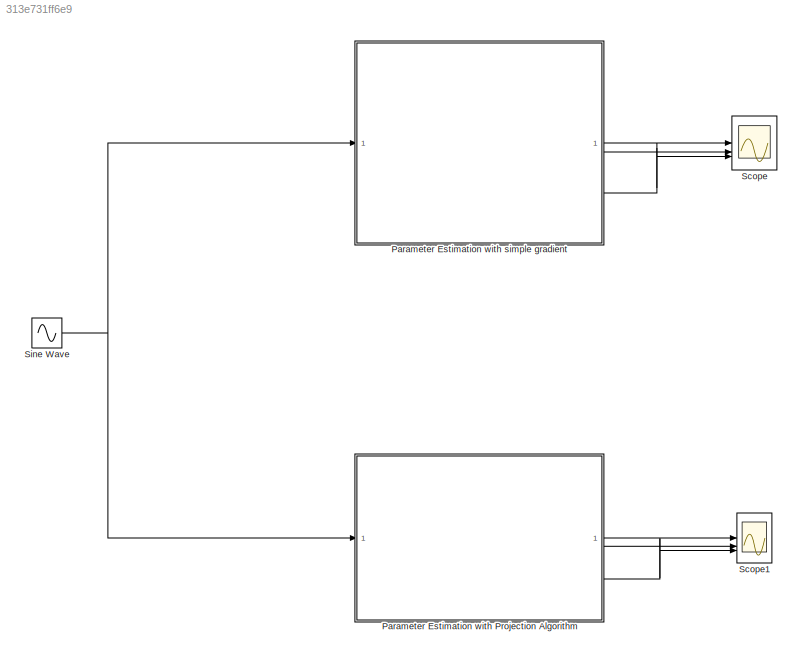
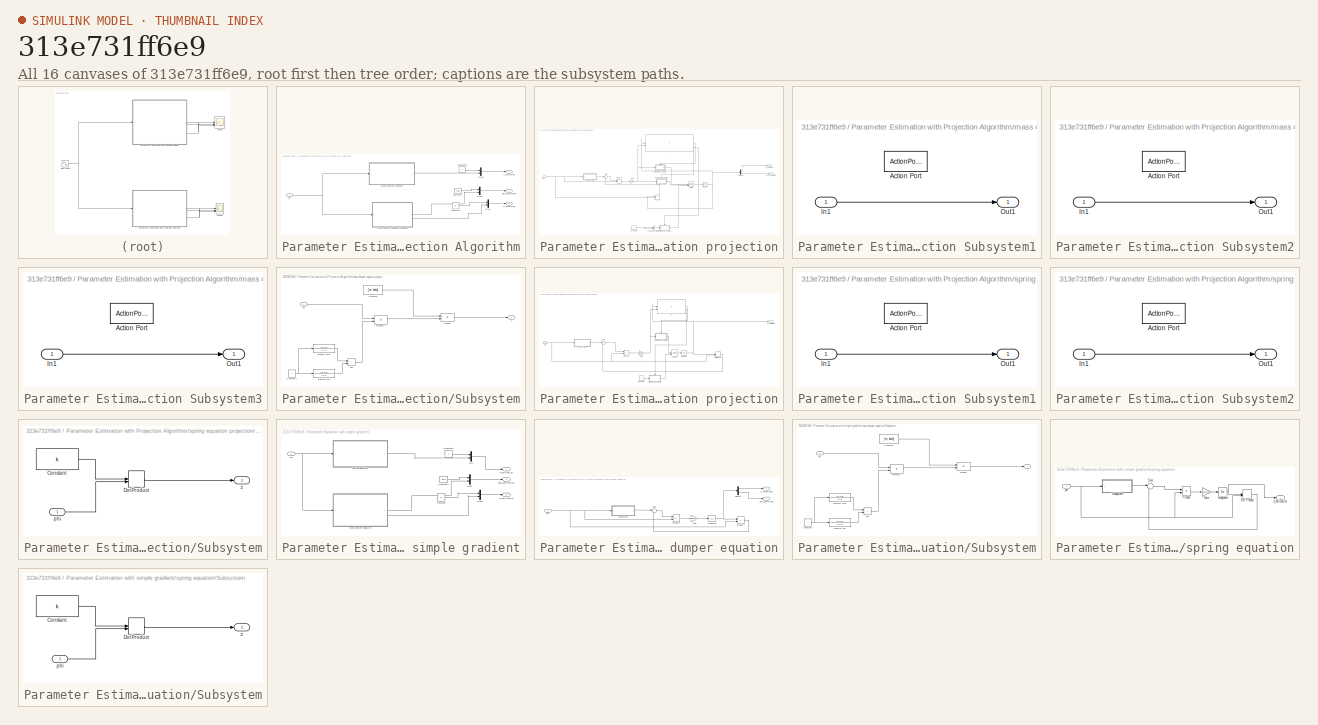
[diagram: thumbnail index - all 16 canvases of the model, root first then tree order]
MODEL slx_313e731ff6e9
KIND model
CONFIG AbsTol = auto
CONFIG EnableMultiTasking = off
CONFIG FixedStep = auto
CONFIG MaxStep = auto
CONFIG MinStep = auto
CONFIG PreLoadFcn = k = 2;\ngamma1 = 0.5;
CONFIG RelTol = 1e-3
CONFIG SampleTimeConstraint = Unconstrained
CONFIG SolverName = VariableStepAuto
CONFIG StartTime = 0.0
CONFIG StopTime = 20.0
WORKSPACE source: mxarray member
WORKSPACE s: Simulink.Parameter (value not decoded)
BLOCK [SubSystem] Parameter Estimation with Projection Algorithm
BLOCK [Constant] Parameter Estimation with Projection Algorithm/Constant3
  Value = m
BLOCK [Constant] Parameter Estimation with Projection Algorithm/Constant4
  Value = beta
BLOCK [Constant] Parameter Estimation with Projection Algorithm/Constant5
  Value = k
BLOCK [Mux] Parameter Estimation with Projection Algorithm/Mux3
  DisplayOption = bar
  Inputs = 2
BLOCK [Mux] Parameter Estimation with Projection Algorithm/Mux4
  DisplayOption = bar
  Inputs = 2
BLOCK [Mux] Parameter Estimation with Projection Algorithm/Mux5
  DisplayOption = bar
  Inputs = 2
BLOCK [Outport] Parameter Estimation with Projection Algorithm/beta_estimated
  Port = 2
BLOCK [Outport] Parameter Estimation with Projection Algorithm/k_estimated
BLOCK [Outport] Parameter Estimation with Projection Algorithm/m_estimated
  Port = 3
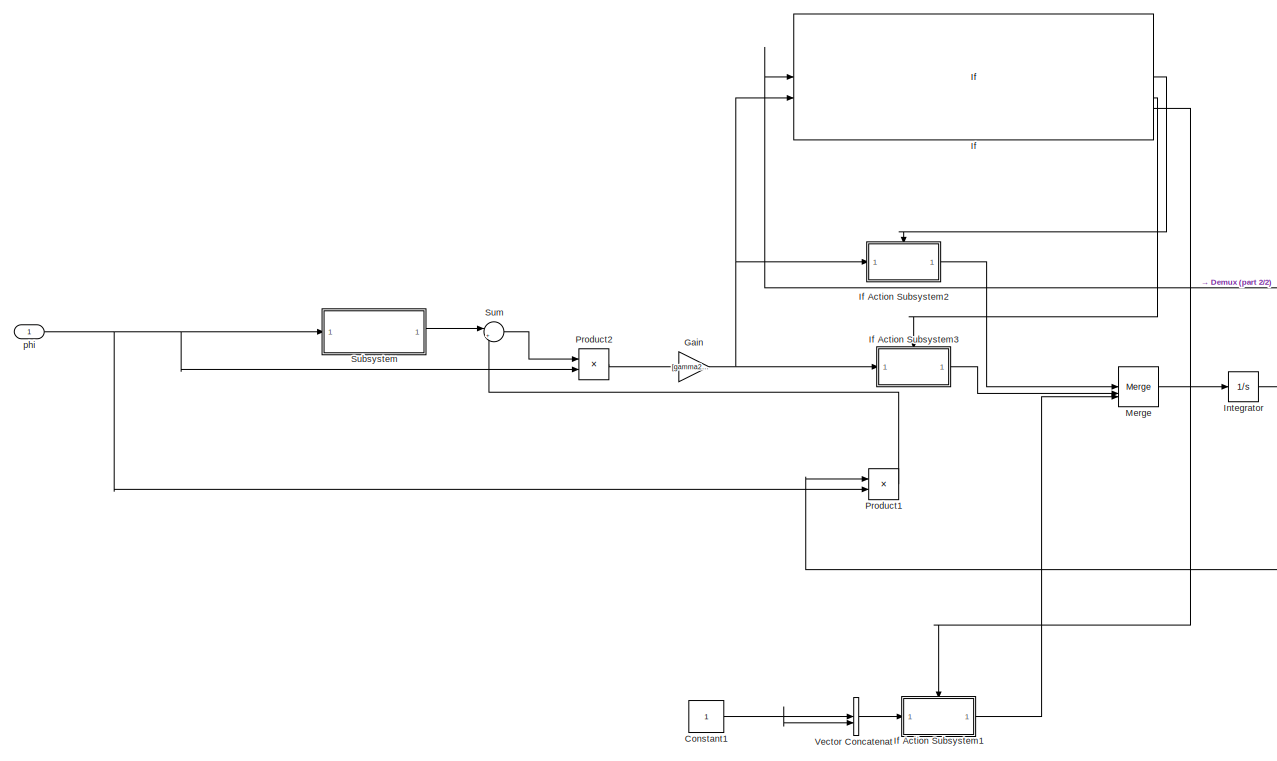
[diagram: Parameter Estimation with Projection Algorithm/mass dumper equation projection - part 1/2, center side, full height]
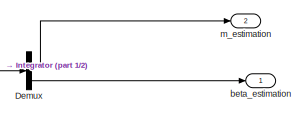
[diagram: Parameter Estimation with Projection Algorithm/mass dumper equation projection - part 2/2, middle right region]
BLOCK [SubSystem] Parameter Estimation with Projection Algorithm/mass dumper equation projection
BLOCK [Constant] Parameter Estimation with Projection Algorithm/mass dumper equation projection/Constant1
BLOCK [Demux] Parameter Estimation with Projection Algorithm/mass dumper equation projection/Demux
  Outputs = 2
BLOCK [Gain] Parameter Estimation with Projection Algorithm/mass dumper equation projection/Gain
  Gain = [gamma2 0; 0 gamma3]
  Multiplication = Matrix(K*u)
BLOCK [If] Parameter Estimation with Projection Algorithm/mass dumper equation projection/If
  ElseIfExpressions = (u1(2) > 0 & u1(2) < 1 ) | (u1(2) == 0. & u2(2) >= 0) | (u1(2) == 1 & u2(2) <= 0)
  IfExpression = (u1(1) > 10) | (u1(1) == 10 & u2(1) >= 0)
  NumInputs = 2
BLOCK [SubSystem] Parameter Estimation with Projection Algorithm/mass dumper equation projection/If Action Subsystem1
  TreatAsAtomicUnit = on
BLOCK [ActionPort] Parameter Estimation with Projection Algorithm/mass dumper equation projection/If Action Subsystem1/Action Port
  ActionPortLabel = else
BLOCK [Inport] Parameter Estimation with Projection Algorithm/mass dumper equation projection/If Action Subsystem1/In1
BLOCK [Outport] Parameter Estimation with Projection Algorithm/mass dumper equation projection/If Action Subsystem1/Out1
BLOCK [SubSystem] Parameter Estimation with Projection Algorithm/mass dumper equation projection/If Action Subsystem2
  TreatAsAtomicUnit = on
BLOCK [ActionPort] Parameter Estimation with Projection Algorithm/mass dumper equation projection/If Action Subsystem2/Action Port
  ActionPortLabel = if((u1(1) > 10) | (u1(1) == 10 & u2(1) >= 0))
BLOCK [Inport] Parameter Estimation with Projection Algorithm/mass dumper equation projection/If Action Subsystem2/In1
BLOCK [Outport] Parameter Estimation with Projection Algorithm/mass dumper equation projection/If Action Subsystem2/Out1
BLOCK [SubSystem] Parameter Estimation with Projection Algorithm/mass dumper equation projection/If Action Subsystem3
  TreatAsAtomicUnit = on
BLOCK [ActionPort] Parameter Estimation with Projection Algorithm/mass dumper equation projection/If Action Subsystem3/Action Port
  ActionPortLabel = elseif((u1(2) > 0 & u1(2) < 1 ) | (u1(2) == 0. & u2(2) >= 0) | (u1(2) == 1 & u2(2) <= 0))
BLOCK [Inport] Parameter Estimation with Projection Algorithm/mass dumper equation projection/If Action Subsystem3/In1
BLOCK [Outport] Parameter Estimation with Projection Algorithm/mass dumper equation projection/If Action Subsystem3/Out1
BLOCK [Integrator] Parameter Estimation with Projection Algorithm/mass dumper equation projection/Integrator
BLOCK [Merge] Parameter Estimation with Projection Algorithm/mass dumper equation projection/Merge
  InitialOutput = 1
  Inputs = 3
BLOCK [Product] Parameter Estimation with Projection Algorithm/mass dumper equation projection/Product1
  Multiplication = Matrix(*)
BLOCK [Product] Parameter Estimation with Projection Algorithm/mass dumper equation projection/Product2
BLOCK [SubSystem] Parameter Estimation with Projection Algorithm/mass dumper equation projection/Subsystem
BLOCK [Sum] Parameter Estimation with Projection Algorithm/mass dumper equation projection/Subsystem/Add
  IconShape = rectangular
BLOCK [Constant] Parameter Estimation with Projection Algorithm/mass dumper equation projection/Subsystem/Constant
  Value = [m; beta]
  VectorParams1D = off
BLOCK [Constant] Parameter Estimation with Projection Algorithm/mass dumper equation projection/Subsystem/Constant1
BLOCK [Product] Parameter Estimation with Projection Algorithm/mass dumper equation projection/Subsystem/Product
BLOCK [Product] Parameter Estimation with Projection Algorithm/mass dumper equation projection/Subsystem/Product1
BLOCK [TransferFcn] Parameter Estimation with Projection Algorithm/mass dumper equation projection/Subsystem/Transfer Fcn
  Numerator = [0 0 1]
BLOCK [TransferFcn] Parameter Estimation with Projection Algorithm/mass dumper equation projection/Subsystem/Transfer Fcn1
  Numerator = [0 1 0]
BLOCK [Inport] Parameter Estimation with Projection Algorithm/mass dumper equation projection/Subsystem/phi
BLOCK [Outport] Parameter Estimation with Projection Algorithm/mass dumper equation projection/Subsystem/z
BLOCK [Sum] Parameter Estimation with Projection Algorithm/mass dumper equation projection/Sum
  Inputs = |+-
BLOCK [Concatenate] Parameter Estimation with Projection Algorithm/mass dumper equation projection/Vector Concatenate
  Mode = Multidimensional array
BLOCK [Outport] Parameter Estimation with Projection Algorithm/mass dumper equation projection/beta_estimation
BLOCK [Outport] Parameter Estimation with Projection Algorithm/mass dumper equation projection/m_estimation
  Port = 2
BLOCK [Inport] Parameter Estimation with Projection Algorithm/mass dumper equation projection/phi
BLOCK [Inport] Parameter Estimation with Projection Algorithm/phi
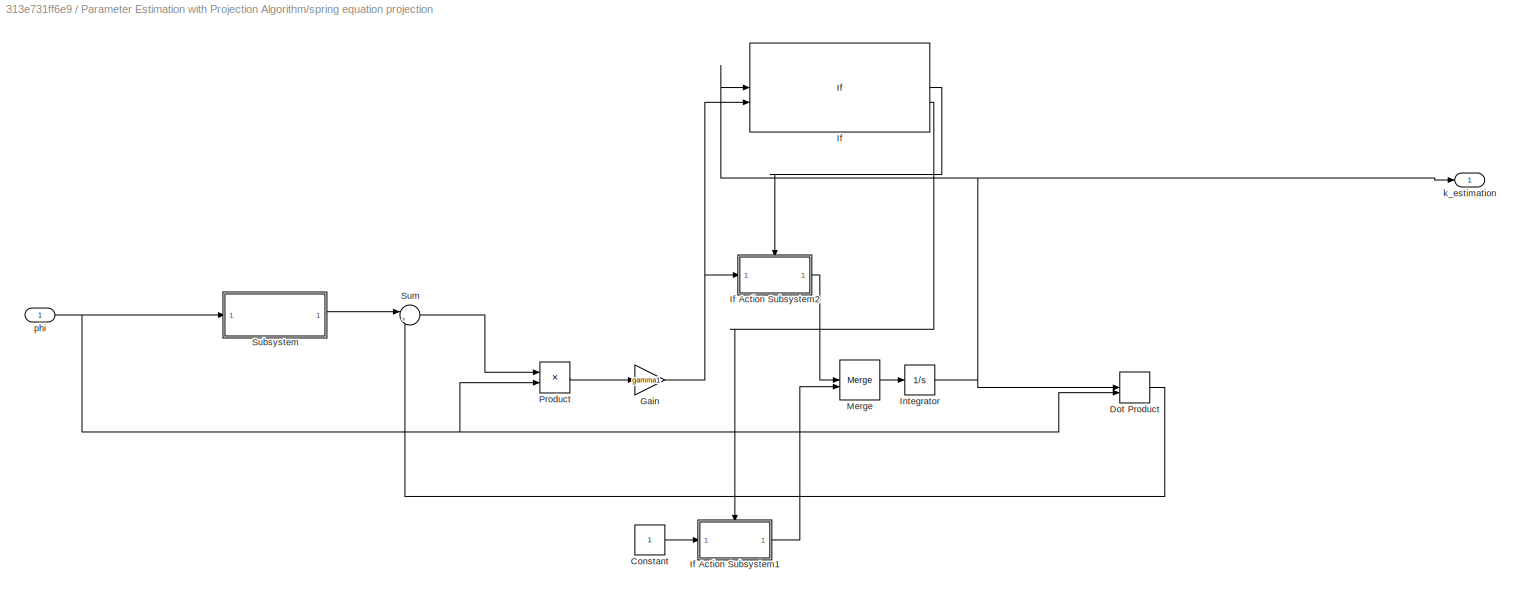
BLOCK [SubSystem] Parameter Estimation with Projection Algorithm/spring equation projection
BLOCK [Constant] Parameter Estimation with Projection Algorithm/spring equation projection/Constant
BLOCK [DotProduct] Parameter Estimation with Projection Algorithm/spring equation projection/Dot Product
  OutDataTypeStr = Inherit: Inherit via internal rule
BLOCK [Gain] Parameter Estimation with Projection Algorithm/spring equation projection/Gain
  Gain = gamma1
BLOCK [If] Parameter Estimation with Projection Algorithm/spring equation projection/If
  IfExpression = (u1 > 0.1) | (u1 == 0.1 & u2>= 0)
  NumInputs = 2
BLOCK [SubSystem] Parameter Estimation with Projection Algorithm/spring equation projection/If Action Subsystem1
  TreatAsAtomicUnit = on
BLOCK [ActionPort] Parameter Estimation with Projection Algorithm/spring equation projection/If Action Subsystem1/Action Port
  ActionPortLabel = else
BLOCK [Inport] Parameter Estimation with Projection Algorithm/spring equation projection/If Action Subsystem1/In1
BLOCK [Outport] Parameter Estimation with Projection Algorithm/spring equation projection/If Action Subsystem1/Out1
BLOCK [SubSystem] Parameter Estimation with Projection Algorithm/spring equation projection/If Action Subsystem2
  TreatAsAtomicUnit = on
BLOCK [ActionPort] Parameter Estimation with Projection Algorithm/spring equation projection/If Action Subsystem2/Action Port
  ActionPortLabel = if((u1 > 0.1) | (u1 == 0.1 & u2>= 0))
BLOCK [Inport] Parameter Estimation with Projection Algorithm/spring equation projection/If Action Subsystem2/In1
BLOCK [Outport] Parameter Estimation with Projection Algorithm/spring equation projection/If Action Subsystem2/Out1
BLOCK [Integrator] Parameter Estimation with Projection Algorithm/spring equation projection/Integrator
BLOCK [Merge] Parameter Estimation with Projection Algorithm/spring equation projection/Merge
  InitialOutput = 1
BLOCK [Product] Parameter Estimation with Projection Algorithm/spring equation projection/Product
BLOCK [SubSystem] Parameter Estimation with Projection Algorithm/spring equation projection/Subsystem
BLOCK [Constant] Parameter Estimation with Projection Algorithm/spring equation projection/Subsystem/Constant
  Value = k
  VectorParams1D = off
BLOCK [DotProduct] Parameter Estimation with Projection Algorithm/spring equation projection/Subsystem/Dot Product
  OutDataTypeStr = Inherit: Inherit via internal rule
BLOCK [Inport] Parameter Estimation with Projection Algorithm/spring equation projection/Subsystem/phi
BLOCK [Outport] Parameter Estimation with Projection Algorithm/spring equation projection/Subsystem/z
BLOCK [Sum] Parameter Estimation with Projection Algorithm/spring equation projection/Sum
  Inputs = |+-
BLOCK [Outport] Parameter Estimation with Projection Algorithm/spring equation projection/k_estimation
BLOCK [Inport] Parameter Estimation with Projection Algorithm/spring equation projection/phi
BLOCK [SubSystem] Parameter Estimation with simple gradient
BLOCK [Constant] Parameter Estimation with simple gradient/Constant
  Value = m
BLOCK [Constant] Parameter Estimation with simple gradient/Constant1
  Value = beta
BLOCK [Constant] Parameter Estimation with simple gradient/Constant2
  Value = k
BLOCK [Mux] Parameter Estimation with simple gradient/Mux
  DisplayOption = bar
  Inputs = 2
BLOCK [Mux] Parameter Estimation with simple gradient/Mux1
  DisplayOption = bar
  Inputs = 2
BLOCK [Mux] Parameter Estimation with simple gradient/Mux2
  DisplayOption = bar
  Inputs = 2
BLOCK [Outport] Parameter Estimation with simple gradient/beta_estimation
  Port = 2
BLOCK [Outport] Parameter Estimation with simple gradient/k_estimation
BLOCK [Outport] Parameter Estimation with simple gradient/m_estimation
  Port = 3
BLOCK [SubSystem] Parameter Estimation with simple gradient/mass dumper equation
BLOCK [Demux] Parameter Estimation with simple gradient/mass dumper equation/Demux
  Outputs = 2
BLOCK [Gain] Parameter Estimation with simple gradient/mass dumper equation/Gain
  Gain = [gamma2 0; 0 gamma3]
  Multiplication = Matrix(K*u)
BLOCK [Integrator] Parameter Estimation with simple gradient/mass dumper equation/Integrator
BLOCK [Product] Parameter Estimation with simple gradient/mass dumper equation/Product1
  Multiplication = Matrix(*)
BLOCK [Product] Parameter Estimation with simple gradient/mass dumper equation/Product2
BLOCK [SubSystem] Parameter Estimation with simple gradient/mass dumper equation/Subsystem
BLOCK [Sum] Parameter Estimation with simple gradient/mass dumper equation/Subsystem/Add
  IconShape = rectangular
BLOCK [Constant] Parameter Estimation with simple gradient/mass dumper equation/Subsystem/Constant
  Value = [m; beta]
  VectorParams1D = off
BLOCK [Constant] Parameter Estimation with simple gradient/mass dumper equation/Subsystem/Constant1
BLOCK [Product] Parameter Estimation with simple gradient/mass dumper equation/Subsystem/Product
BLOCK [Product] Parameter Estimation with simple gradient/mass dumper equation/Subsystem/Product1
BLOCK [TransferFcn] Parameter Estimation with simple gradient/mass dumper equation/Subsystem/Transfer Fcn
  Numerator = [0 0 1]
BLOCK [TransferFcn] Parameter Estimation with simple gradient/mass dumper equation/Subsystem/Transfer Fcn1
  Numerator = [0 1 0]
BLOCK [Inport] Parameter Estimation with simple gradient/mass dumper equation/Subsystem/phi
BLOCK [Outport] Parameter Estimation with simple gradient/mass dumper equation/Subsystem/z
BLOCK [Sum] Parameter Estimation with simple gradient/mass dumper equation/Sum
  Inputs = |+-
BLOCK [Outport] Parameter Estimation with simple gradient/mass dumper equation/beta_estimation
BLOCK [Outport] Parameter Estimation with simple gradient/mass dumper equation/m_estimation
  Port = 2
BLOCK [Inport] Parameter Estimation with simple gradient/mass dumper equation/phi
BLOCK [Inport] Parameter Estimation with simple gradient/phi
BLOCK [SubSystem] Parameter Estimation with simple gradient/spring equation
BLOCK [DotProduct] Parameter Estimation with simple gradient/spring equation/Dot Product
  OutDataTypeStr = Inherit: Inherit via internal rule
BLOCK [Gain] Parameter Estimation with simple gradient/spring equation/Gain
  Gain = gamma1
BLOCK [Integrator] Parameter Estimation with simple gradient/spring equation/Integrator
BLOCK [Product] Parameter Estimation with simple gradient/spring equation/Product
BLOCK [SubSystem] Parameter Estimation with simple gradient/spring equation/Subsystem
BLOCK [Constant] Parameter Estimation with simple gradient/spring equation/Subsystem/Constant
  Value = k
  VectorParams1D = off
BLOCK [DotProduct] Parameter Estimation with simple gradient/spring equation/Subsystem/Dot Product
  OutDataTypeStr = Inherit: Inherit via internal rule
BLOCK [Inport] Parameter Estimation with simple gradient/spring equation/Subsystem/phi
BLOCK [Outport] Parameter Estimation with simple gradient/spring equation/Subsystem/z
BLOCK [Sum] Parameter Estimation with simple gradient/spring equation/Sum
  Inputs = |+-
BLOCK [Outport] Parameter Estimation with simple gradient/spring equation/k_estimation
BLOCK [Inport] Parameter Estimation with simple gradient/spring equation/phi
BLOCK [Scope] Scope
  Floating = off
  NumInputPorts = 3
  ScopeSpecificationString = Simulink.scopes.TimeScopeBlockCfg('CurrentConfiguration', extmgr.ConfigurationSet(extmgr.Configuration('Core','General UI',true),extmgr.Configuration('Core','Source UI',true),extmgr.Configuration('Sources','WiredSimulink',true),extmgr.Configuration('Visuals','Time Domain',true,'SerializedDisplays',{struct('MinYLimReal','-0.25','MaxYLimReal','2.25','YLabelReal','','MinYLimMag','0.00000','MaxYLimMag...<+3364ch>
BLOCK [Scope] Scope1
  Floating = off
  NumInputPorts = 3
  ScopeSpecificationString = Simulink.scopes.TimeScopeBlockCfg('CurrentConfiguration', extmgr.ConfigurationSet(extmgr.Configuration('Core','General UI',true),extmgr.Configuration('Core','Source UI',true),extmgr.Configuration('Sources','WiredSimulink',true,'DataLoggingVariableName','ScopeData1'),extmgr.Configuration('Visuals','Time Domain',true,'SerializedDisplays',{struct('MinYLimReal','-0.25','MaxYLimReal','2.25','YLabelReal...<+3374ch>
BLOCK [Sin] Sine Wave
  Amplitude = 5
  Bias = 10.5
  Frequency = 2
  SampleTime = 0
LINE Parameter Estimation with Projection Algorithm/Constant3:1 -> Parameter Estimation with Projection Algorithm/Mux4:1
LINE Parameter Estimation with Projection Algorithm/Constant4:1 -> Parameter Estimation with Projection Algorithm/Mux5:1
LINE Parameter Estimation with Projection Algorithm/Constant5:1 -> Parameter Estimation with Projection Algorithm/Mux3:1
LINE Parameter Estimation with Projection Algorithm/Mux3:1 -> Parameter Estimation with Projection Algorithm/k_estimated:1
LINE Parameter Estimation with Projection Algorithm/Mux4:1 -> Parameter Estimation with Projection Algorithm/m_estimated:1
LINE Parameter Estimation with Projection Algorithm/Mux5:1 -> Parameter Estimation with Projection Algorithm/beta_estimated:1
NET Parameter Estimation with Projection Algorithm/mass dumper equation projection/Constant1:1 -> Parameter Estimation with Projection Algorithm/mass dumper equation projection/Vector Concatenate:1, Parameter Estimation with Projection Algorithm/mass dumper equation projection/Vector Concatenate:2
LINE Parameter Estimation with Projection Algorithm/mass dumper equation projection/Demux:1 -> Parameter Estimation with Projection Algorithm/mass dumper equation projection/m_estimation:1
LINE Parameter Estimation with Projection Algorithm/mass dumper equation projection/Demux:2 -> Parameter Estimation with Projection Algorithm/mass dumper equation projection/beta_estimation:1
NET Parameter Estimation with Projection Algorithm/mass dumper equation projection/Gain:1 -> Parameter Estimation with Projection Algorithm/mass dumper equation projection/If Action Subsystem2:1, Parameter Estimation with Projection Algorithm/mass dumper equation projection/If Action Subsystem3:1, Parameter Estimation with Projection Algorithm/mass dumper equation projection/If:2
LINE Parameter Estimation with Projection Algorithm/mass dumper equation projection/If Action Subsystem1/In1:1 -> Parameter Estimation with Projection Algorithm/mass dumper equation projection/If Action Subsystem1/Out1:1
LINE Parameter Estimation with Projection Algorithm/mass dumper equation projection/If Action Subsystem1:1 -> Parameter Estimation with Projection Algorithm/mass dumper equation projection/Merge:3
LINE Parameter Estimation with Projection Algorithm/mass dumper equation projection/If Action Subsystem2/In1:1 -> Parameter Estimation with Projection Algorithm/mass dumper equation projection/If Action Subsystem2/Out1:1
LINE Parameter Estimation with Projection Algorithm/mass dumper equation projection/If Action Subsystem2:1 -> Parameter Estimation with Projection Algorithm/mass dumper equation projection/Merge:1
LINE Parameter Estimation with Projection Algorithm/mass dumper equation projection/If Action Subsystem3/In1:1 -> Parameter Estimation with Projection Algorithm/mass dumper equation projection/If Action Subsystem3/Out1:1
LINE Parameter Estimation with Projection Algorithm/mass dumper equation projection/If Action Subsystem3:1 -> Parameter Estimation with Projection Algorithm/mass dumper equation projection/Merge:2
LINE Parameter Estimation with Projection Algorithm/mass dumper equation projection/If:1 -> Parameter Estimation with Projection Algorithm/mass dumper equation projection/If Action Subsystem2:ifaction
LINE Parameter Estimation with Projection Algorithm/mass dumper equation projection/If:2 -> Parameter Estimation with Projection Algorithm/mass dumper equation projection/If Action Subsystem3:ifaction
LINE Parameter Estimation with Projection Algorithm/mass dumper equation projection/If:3 -> Parameter Estimation with Projection Algorithm/mass dumper equation projection/If Action Subsystem1:ifaction
NET Parameter Estimation with Projection Algorithm/mass dumper equation projection/Integrator:1 -> Parameter Estimation with Projection Algorithm/mass dumper equation projection/Demux:1, Parameter Estimation with Projection Algorithm/mass dumper equation projection/If:1, Parameter Estimation with Projection Algorithm/mass dumper equation projection/Product1:1
LINE Parameter Estimation with Projection Algorithm/mass dumper equation projection/Merge:1 -> Parameter Estimation with Projection Algorithm/mass dumper equation projection/Integrator:1
LINE Parameter Estimation with Projection Algorithm/mass dumper equation projection/Product1:1 -> Parameter Estimation with Projection Algorithm/mass dumper equation projection/Sum:2
LINE Parameter Estimation with Projection Algorithm/mass dumper equation projection/Product2:1 -> Parameter Estimation with Projection Algorithm/mass dumper equation projection/Gain:1
LINE Parameter Estimation with Projection Algorithm/mass dumper equation projection/Subsystem/Add:1 -> Parameter Estimation with Projection Algorithm/mass dumper equation projection/Subsystem/Product1:2
NET Parameter Estimation with Projection Algorithm/mass dumper equation projection/Subsystem/Constant1:1 -> Parameter Estimation with Projection Algorithm/mass dumper equation projection/Subsystem/Transfer Fcn1:1, Parameter Estimation with Projection Algorithm/mass dumper equation projection/Subsystem/Transfer Fcn:1
LINE Parameter Estimation with Projection Algorithm/mass dumper equation projection/Subsystem/Constant:1 -> Parameter Estimation with Projection Algorithm/mass dumper equation projection/Subsystem/Product:1
LINE Parameter Estimation with Projection Algorithm/mass dumper equation projection/Subsystem/Product1:1 -> Parameter Estimation with Projection Algorithm/mass dumper equation projection/Subsystem/Product:2
LINE Parameter Estimation with Projection Algorithm/mass dumper equation projection/Subsystem/Product:1 -> Parameter Estimation with Projection Algorithm/mass dumper equation projection/Subsystem/z:1
LINE Parameter Estimation with Projection Algorithm/mass dumper equation projection/Subsystem/Transfer Fcn1:1 -> Parameter Estimation with Projection Algorithm/mass dumper equation projection/Subsystem/Add:1
LINE Parameter Estimation with Projection Algorithm/mass dumper equation projection/Subsystem/Transfer Fcn:1 -> Parameter Estimation with Projection Algorithm/mass dumper equation projection/Subsystem/Add:2
LINE Parameter Estimation with Projection Algorithm/mass dumper equation projection/Subsystem/phi:1 -> Parameter Estimation with Projection Algorithm/mass dumper equation projection/Subsystem/Product1:1
LINE Parameter Estimation with Projection Algorithm/mass dumper equation projection/Subsystem:1 -> Parameter Estimation with Projection Algorithm/mass dumper equation projection/Sum:1
LINE Parameter Estimation with Projection Algorithm/mass dumper equation projection/Sum:1 -> Parameter Estimation with Projection Algorithm/mass dumper equation projection/Product2:1
LINE Parameter Estimation with Projection Algorithm/mass dumper equation projection/Vector Concatenate:1 -> Parameter Estimation with Projection Algorithm/mass dumper equation projection/If Action Subsystem1:1
NET Parameter Estimation with Projection Algorithm/mass dumper equation projection/phi:1 -> Parameter Estimation with Projection Algorithm/mass dumper equation projection/Product1:2, Parameter Estimation with Projection Algorithm/mass dumper equation projection/Product2:2, Parameter Estimation with Projection Algorithm/mass dumper equation projection/Subsystem:1
LINE Parameter Estimation with Projection Algorithm/mass dumper equation projection:1 -> Parameter Estimation with Projection Algorithm/Mux5:2
LINE Parameter Estimation with Projection Algorithm/mass dumper equation projection:2 -> Parameter Estimation with Projection Algorithm/Mux4:2
NET Parameter Estimation with Projection Algorithm/phi:1 -> Parameter Estimation with Projection Algorithm/mass dumper equation projection:1, Parameter Estimation with Projection Algorithm/spring equation projection:1
LINE Parameter Estimation with Projection Algorithm/spring equation projection/Constant:1 -> Parameter Estimation with Projection Algorithm/spring equation projection/If Action Subsystem1:1
LINE Parameter Estimation with Projection Algorithm/spring equation projection/Dot Product:1 -> Parameter Estimation with Projection Algorithm/spring equation projection/Sum:2
NET Parameter Estimation with Projection Algorithm/spring equation projection/Gain:1 -> Parameter Estimation with Projection Algorithm/spring equation projection/If Action Subsystem2:1, Parameter Estimation with Projection Algorithm/spring equation projection/If:2
LINE Parameter Estimation with Projection Algorithm/spring equation projection/If Action Subsystem1/In1:1 -> Parameter Estimation with Projection Algorithm/spring equation projection/If Action Subsystem1/Out1:1
LINE Parameter Estimation with Projection Algorithm/spring equation projection/If Action Subsystem1:1 -> Parameter Estimation with Projection Algorithm/spring equation projection/Merge:2
LINE Parameter Estimation with Projection Algorithm/spring equation projection/If Action Subsystem2/In1:1 -> Parameter Estimation with Projection Algorithm/spring equation projection/If Action Subsystem2/Out1:1
LINE Parameter Estimation with Projection Algorithm/spring equation projection/If Action Subsystem2:1 -> Parameter Estimation with Projection Algorithm/spring equation projection/Merge:1
LINE Parameter Estimation with Projection Algorithm/spring equation projection/If:1 -> Parameter Estimation with Projection Algorithm/spring equation projection/If Action Subsystem2:ifaction
LINE Parameter Estimation with Projection Algorithm/spring equation projection/If:2 -> Parameter Estimation with Projection Algorithm/spring equation projection/If Action Subsystem1:ifaction
NET Parameter Estimation with Projection Algorithm/spring equation projection/Integrator:1 -> Parameter Estimation with Projection Algorithm/spring equation projection/Dot Product:1, Parameter Estimation with Projection Algorithm/spring equation projection/If:1, Parameter Estimation with Projection Algorithm/spring equation projection/k_estimation:1
LINE Parameter Estimation with Projection Algorithm/spring equation projection/Merge:1 -> Parameter Estimation with Projection Algorithm/spring equation projection/Integrator:1
LINE Parameter Estimation with Projection Algorithm/spring equation projection/Product:1 -> Parameter Estimation with Projection Algorithm/spring equation projection/Gain:1
LINE Parameter Estimation with Projection Algorithm/spring equation projection/Subsystem/Constant:1 -> Parameter Estimation with Projection Algorithm/spring equation projection/Subsystem/Dot Product:1
LINE Parameter Estimation with Projection Algorithm/spring equation projection/Subsystem/Dot Product:1 -> Parameter Estimation with Projection Algorithm/spring equation projection/Subsystem/z:1
LINE Parameter Estimation with Projection Algorithm/spring equation projection/Subsystem/phi:1 -> Parameter Estimation with Projection Algorithm/spring equation projection/Subsystem/Dot Product:2
LINE Parameter Estimation with Projection Algorithm/spring equation projection/Subsystem:1 -> Parameter Estimation with Projection Algorithm/spring equation projection/Sum:1
LINE Parameter Estimation with Projection Algorithm/spring equation projection/Sum:1 -> Parameter Estimation with Projection Algorithm/spring equation projection/Product:1
NET Parameter Estimation with Projection Algorithm/spring equation projection/phi:1 -> Parameter Estimation with Projection Algorithm/spring equation projection/Dot Product:2, Parameter Estimation with Projection Algorithm/spring equation projection/Product:2, Parameter Estimation with Projection Algorithm/spring equation projection/Subsystem:1
LINE Parameter Estimation with Projection Algorithm/spring equation projection:1 -> Parameter Estimation with Projection Algorithm/Mux3:2
LINE Parameter Estimation with Projection Algorithm:1 -> Scope1:1
LINE Parameter Estimation with Projection Algorithm:2 -> Scope1:2
LINE Parameter Estimation with Projection Algorithm:3 -> Scope1:3
LINE Parameter Estimation with simple gradient/Constant1:1 -> Parameter Estimation with simple gradient/Mux2:1
LINE Parameter Estimation with simple gradient/Constant2:1 -> Parameter Estimation with simple gradient/Mux:1
LINE Parameter Estimation with simple gradient/Constant:1 -> Parameter Estimation with simple gradient/Mux1:1
LINE Parameter Estimation with simple gradient/Mux1:1 -> Parameter Estimation with simple gradient/m_estimation:1
LINE Parameter Estimation with simple gradient/Mux2:1 -> Parameter Estimation with simple gradient/beta_estimation:1
LINE Parameter Estimation with simple gradient/Mux:1 -> Parameter Estimation with simple gradient/k_estimation:1
LINE Parameter Estimation with simple gradient/mass dumper equation/Demux:1 -> Parameter Estimation with simple gradient/mass dumper equation/m_estimation:1
LINE Parameter Estimation with simple gradient/mass dumper equation/Demux:2 -> Parameter Estimation with simple gradient/mass dumper equation/beta_estimation:1
LINE Parameter Estimation with simple gradient/mass dumper equation/Gain:1 -> Parameter Estimation with simple gradient/mass dumper equation/Integrator:1
NET Parameter Estimation with simple gradient/mass dumper equation/Integrator:1 -> Parameter Estimation with simple gradient/mass dumper equation/Demux:1, Parameter Estimation with simple gradient/mass dumper equation/Product1:1
LINE Parameter Estimation with simple gradient/mass dumper equation/Product1:1 -> Parameter Estimation with simple gradient/mass dumper equation/Sum:2
LINE Parameter Estimation with simple gradient/mass dumper equation/Product2:1 -> Parameter Estimation with simple gradient/mass dumper equation/Gain:1
LINE Parameter Estimation with simple gradient/mass dumper equation/Subsystem/Add:1 -> Parameter Estimation with simple gradient/mass dumper equation/Subsystem/Product1:2
NET Parameter Estimation with simple gradient/mass dumper equation/Subsystem/Constant1:1 -> Parameter Estimation with simple gradient/mass dumper equation/Subsystem/Transfer Fcn1:1, Parameter Estimation with simple gradient/mass dumper equation/Subsystem/Transfer Fcn:1
LINE Parameter Estimation with simple gradient/mass dumper equation/Subsystem/Constant:1 -> Parameter Estimation with simple gradient/mass dumper equation/Subsystem/Product:1
LINE Parameter Estimation with simple gradient/mass dumper equation/Subsystem/Product1:1 -> Parameter Estimation with simple gradient/mass dumper equation/Subsystem/Product:2
LINE Parameter Estimation with simple gradient/mass dumper equation/Subsystem/Product:1 -> Parameter Estimation with simple gradient/mass dumper equation/Subsystem/z:1
LINE Parameter Estimation with simple gradient/mass dumper equation/Subsystem/Transfer Fcn1:1 -> Parameter Estimation with simple gradient/mass dumper equation/Subsystem/Add:1
LINE Parameter Estimation with simple gradient/mass dumper equation/Subsystem/Transfer Fcn:1 -> Parameter Estimation with simple gradient/mass dumper equation/Subsystem/Add:2
LINE Parameter Estimation with simple gradient/mass dumper equation/Subsystem/phi:1 -> Parameter Estimation with simple gradient/mass dumper equation/Subsystem/Product1:1
LINE Parameter Estimation with simple gradient/mass dumper equation/Subsystem:1 -> Parameter Estimation with simple gradient/mass dumper equation/Sum:1
LINE Parameter Estimation with simple gradient/mass dumper equation/Sum:1 -> Parameter Estimation with simple gradient/mass dumper equation/Product2:1
NET Parameter Estimation with simple gradient/mass dumper equation/phi:1 -> Parameter Estimation with simple gradient/mass dumper equation/Product1:2, Parameter Estimation with simple gradient/mass dumper equation/Product2:2, Parameter Estimation with simple gradient/mass dumper equation/Subsystem:1
LINE Parameter Estimation with simple gradient/mass dumper equation:1 -> Parameter Estimation with simple gradient/Mux2:2
LINE Parameter Estimation with simple gradient/mass dumper equation:2 -> Parameter Estimation with simple gradient/Mux1:2
NET Parameter Estimation with simple gradient/phi:1 -> Parameter Estimation with simple gradient/mass dumper equation:1, Parameter Estimation with simple gradient/spring equation:1
LINE Parameter Estimation with simple gradient/spring equation/Dot Product:1 -> Parameter Estimation with simple gradient/spring equation/Sum:2
LINE Parameter Estimation with simple gradient/spring equation/Gain:1 -> Parameter Estimation with simple gradient/spring equation/Integrator:1
NET Parameter Estimation with simple gradient/spring equation/Integrator:1 -> Parameter Estimation with simple gradient/spring equation/Dot Product:1, Parameter Estimation with simple gradient/spring equation/k_estimation:1
LINE Parameter Estimation with simple gradient/spring equation/Product:1 -> Parameter Estimation with simple gradient/spring equation/Gain:1
LINE Parameter Estimation with simple gradient/spring equation/Subsystem/Constant:1 -> Parameter Estimation with simple gradient/spring equation/Subsystem/Dot Product:1
LINE Parameter Estimation with simple gradient/spring equation/Subsystem/Dot Product:1 -> Parameter Estimation with simple gradient/spring equation/Subsystem/z:1
LINE Parameter Estimation with simple gradient/spring equation/Subsystem/phi:1 -> Parameter Estimation with simple gradient/spring equation/Subsystem/Dot Product:2
LINE Parameter Estimation with simple gradient/spring equation/Subsystem:1 -> Parameter Estimation with simple gradient/spring equation/Sum:1
LINE Parameter Estimation with simple gradient/spring equation/Sum:1 -> Parameter Estimation with simple gradient/spring equation/Product:1
NET Parameter Estimation with simple gradient/spring equation/phi:1 -> Parameter Estimation with simple gradient/spring equation/Dot Product:2, Parameter Estimation with simple gradient/spring equation/Product:2, Parameter Estimation with simple gradient/spring equation/Subsystem:1
LINE Parameter Estimation with simple gradient/spring equation:1 -> Parameter Estimation with simple gradient/Mux:2
LINE Parameter Estimation with simple gradient:1 -> Scope:1
LINE Parameter Estimation with simple gradient:2 -> Scope:2
LINE Parameter Estimation with simple gradient:3 -> Scope:3
NET Sine Wave:1 -> Parameter Estimation with Projection Algorithm:1, Parameter Estimation with simple gradient:1
note: NET lines group one-source signal fan-out (src -> all destinations, sorted); 1:1 wires keep LINE
